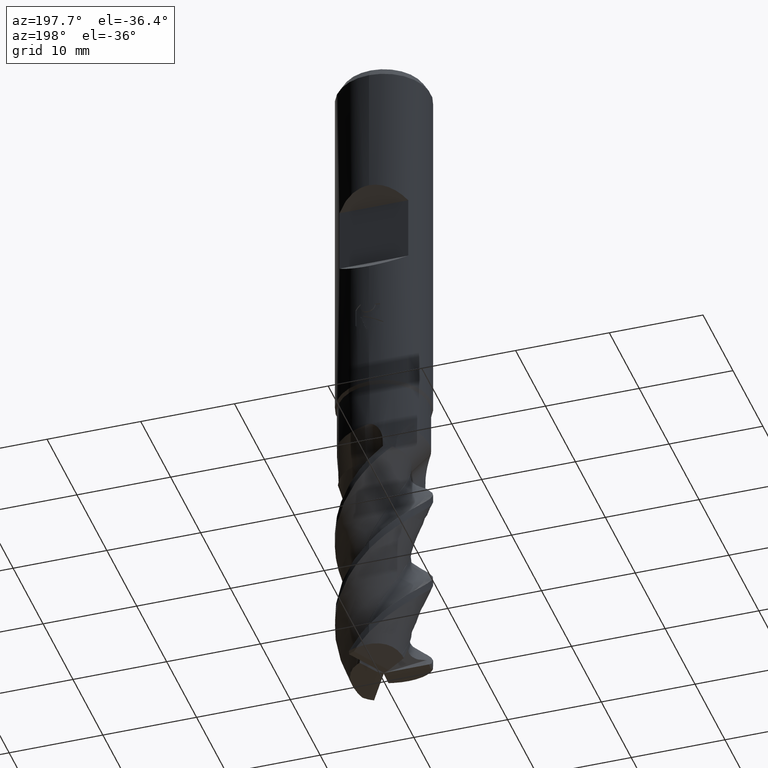
[diagram: clean part render]
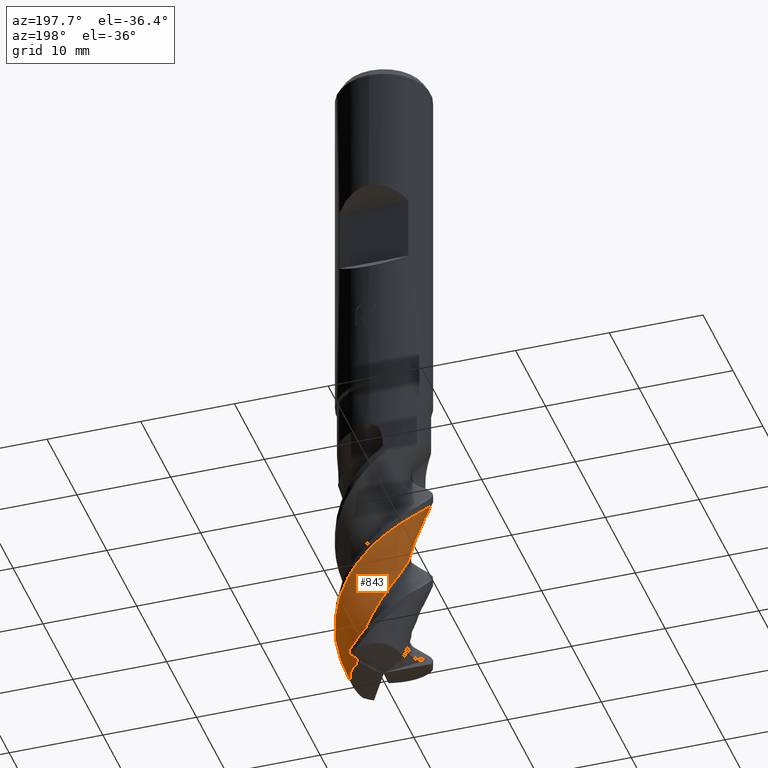
[diagram: same view with one face highlighted and labeled with its STEP entity id]
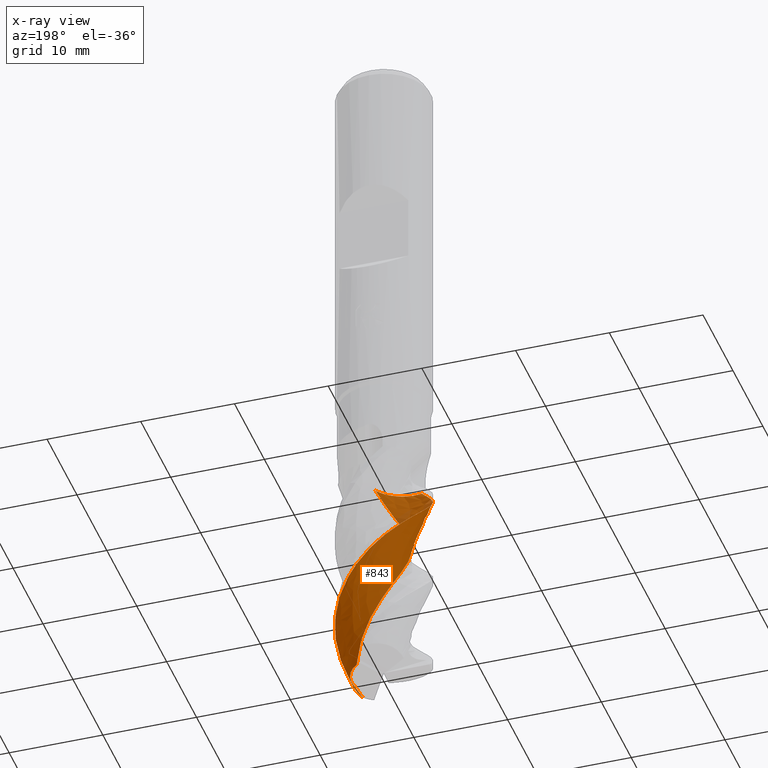
[diagram: x-ray of the same camera — body ghosted, the highlighted face saturated]
A machine part, auxiliary view. The second image highlights one B-rep face of the part: STEP entity #843.
The next image is the same camera in x-ray: the body ghosted, the highlighted face saturated — about 1% of this face is hidden behind the body in this view.
In plain terms, the highlighted face is a freeform B-spline surface patch.
Its self-contained STEP definition (entity closure, byte-faithful):
#541=VERTEX_POINT('',#1450);
#573=VERTEX_POINT('',#1484);
#625=EDGE_CURVE('',#981,#541,#1541,.T.);
#843=ADVANCED_FACE('',(#1776),#1777,.T.);
#917=EDGE_CURVE('',#1131,#1115,#1861,.T.);
#927=EDGE_CURVE('',#1003,#573,#1872,.T.);
#965=EDGE_CURVE('',#541,#983,#1912,.T.);
#981=VERTEX_POINT('',#1928);
#983=VERTEX_POINT('',#1930);
#1003=VERTEX_POINT('',#1950);
#1115=VERTEX_POINT('',#2074);
#1131=VERTEX_POINT('',#2093);
#1205=EDGE_CURVE('',#573,#981,#2178,.T.);
#1207=EDGE_CURVE('',#983,#1115,#2180,.T.);
#1227=EDGE_CURVE('',#1131,#1003,#2201,.T.);
#1450=CARTESIAN_POINT('',(-2.69298469409963,-4.21269906916516,-48.0));
#1484=CARTESIAN_POINT('',(3.41872528524508,-3.64860485994659,-72.8));
#1541=B_SPLINE_CURVE_WITH_KNOTS('',3,(#3372,#3373,#3374,#3375,#3376,#3377,#3378,#3379,#3380,#3381,#3382,#3383,#3384,#3385,#3386,#3387,#3388,#3389,#3390,#3391,#3392,#3393,#3394,#3395,#3396,#3397,#3398,#3399,#3400,#3401,#3402,#3403,#3404,#3405,#3406,#3407,#3408,#3409,#3410,#3411,#3412,#3413,#3414,#3415,#3416,#3417,#3418,#3419,#3420,#3421,#3422,#3423),.UNSPECIFIED.,.F.,.F.,(4,2,2,2,2,2,2,2,2,2,2,2,2,2,2,2,2,2,2,2,2,2,2,2,2,4),(0.0,0.988134241583596,1.95270639278563,3.82966324160619,4.95475581507991,5.92494092433805,7.80917052882413,9.09005883313164,10.2468111144452,11.1970510004283,13.1661303513227,14.2878595005954,15.1121674297604,15.6189022081948,16.0113833273438,16.8208845094153,17.3187185880664,17.7663978848798,17.9842540383851,18.4097521990205,18.6797584043021,18.8995568507258,19.3448815183929,19.5253152425362,19.8025233185832,20.0737217136674),.UNSPECIFIED.);
#1776=FACE_OUTER_BOUND('',#5028,.T.);
#1777=B_SPLINE_SURFACE_WITH_KNOTS('',3,3,((#5029,#5030,#5031,#5032,#5033,#5034,#5035,#5036,#5037,#5038,#5039,#5040,#5041,#5042,#5043,#5044,#5045,#5046,#5047,#5048,#5049,#5050,#5051,#5052,#5053,#5054,#5055,#5056,#5057,#5058,#5059,#5060,#5061,#5062,#5063,#5064,#5065,#5066,#5067,#5068,#5069,#5070,#5071,#5072,#5073,#5074,#5075,#5076,#5077,#5078,#5079,#5080,#5081,#5082,#5083,#5084),(#5085,#5086,#5087,#5088,#5089,#5090,#5091,#5092,#5093,#5094,#5095,#5096,#5097,#5098,#5099,#5100,#5101,#5102,#5103,#5104,#5105,#5106,#5107,#5108,#5109,#5110,#5111,#5112,#5113,#5114,#5115,#5116,#5117,#5118,#5119,#5120,#5121,#5122,#5123,#5124,#5125,#5126,#5127,#5128,#5129,#5130,#5131,#5132,#5133,#5134,#5135,#5136,#5137,#5138,#5139,#5140),(#5141,#5142,#5143,#5144,#5145,#5146,#5147,#5148,#5149,#5150,#5151,#5152,#5153,#5154,#5155,#5156,#5157,#5158,#5159,#5160,#5161,#5162,#5163,#5164,#5165,#5166,#5167,#5168,#5169,#5170,#5171,#5172,#5173,#5174,#5175,#5176,#5177,#5178,#5179,#5180,#5181,#5182,#5183,#5184,#5185,#5186,#5187,#5188,#5189,#5190,#5191,#5192,#5193,#5194,#5195,#5196),(#5197,#5198,#5199,#5200,#5201,#5202,#5203,#5204,#5205,#5206,#5207,#5208,#5209,#5210,#5211,#5212,#5213,#5214,#5215,#5216,#5217,#5218,#5219,#5220,#5221,#5222,#5223,#5224,#5225,#5226,#5227,#5228,#5229,#5230,#5231,#5232,#5233,#5234,#5235,#5236,#5237,#5238,#5239,#5240,#5241,#5242,#5243,#5244,#5245,#5246,#5247,#5248,#5249,#5250,#5251,#5252),(#5253,#5254,#5255,#5256,#5257,#5258,#5259,#5260,#5261,#5262,#5263,#5264,#5265,#5266,#5267,#5268,#5269,#5270,#5271,#5272,#5273,#5274,#5275,#5276,#5277,#5278,#5279,#5280,#5281,#5282,#5283,#5284,#5285,#5286,#5287,#5288,#5289,#5290,#5291,#5292,#5293,#5294,#5295,#5296,#5297,#5298,#5299,#5300,#5301,#5302,#5303,#5304,#5305,#5306,#5307,#5308),(#5309,#5310,#5311,#5312,#5313,#5314,#5315,#5316,#5317,#5318,#5319,#5320,#5321,#5322,#5323,#5324,#5325,#5326,#5327,#5328,#5329,#5330,#5331,#5332,#5333,#5334,#5335,#5336,#5337,#5338,#5339,#5340,#5341,#5342,#5343,#5344,#5345,#5346,#5347,#5348,#5349,#5350,#5351,#5352,#5353,#5354,#5355,#5356,#5357,#5358,#5359,#5360,#5361,#5362,#5363,#5364),(#5365,#5366,#5367,#5368,#5369,#5370,#5371,#5372,#5373,#5374,#5375,#5376,#5377,#5378,#5379,#5380,#5381,#5382,#5383,#5384,#5385,#5386,#5387,#5388,#5389,#5390,#5391,#5392,#5393,#5394,#5395,#5396,#5397,#5398,#5399,#5400,#5401,#5402,#5403,#5404,#5405,#5406,#5407,#5408,#5409,#5410,#5411,#5412,#5413,#5414,#5415,#5416,#5417,#5418,#5419,#5420)),.UNSPECIFIED.,.F.,.F.,.F.,(4,1,1,1,4),(4,1,1,2,1,2,1,2,1,1,1,2,1,2,1,2,1,2,1,2,1,2,1,2,1,2,1,2,1,2,1,2,1,2,1,2,1,4),(-1.37901021717097,-1.03425766287823,-0.689505108585486,-0.344752554292743,0.0),(0.0,0.706621103411192,1.05993165511679,1.41324220682238,2.11986331023358,2.82648441364477,4.23972662046715,5.65296882728954,6.35958993070073,7.06621103411192,7.77283213752311,8.47945324093431,9.89269544775669,11.3059376545791,12.7191798614015,14.1324220682238,15.5456642750462,16.9589064818686,18.372148688691,19.7853908955134,21.1986331023358,22.6118753091582,24.0251175159805,25.4383597228029,26.8516019296253,28.2648441364477,29.6780863432701,31.0913285500925,32.5045707569148,33.9178129637372,35.3310551705596,36.744297377382,38.1575395842044,39.5707817910268,40.9840239978492,42.3972662046715,43.8105084114939,45.2237506183163),.UNSPECIFIED.);
#1861=B_SPLINE_CURVE_WITH_KNOTS('',3,(#5663,#5664,#5665,#5666,#5667,#5668,#5669,#5670,#5671,#5672,#5673,#5674,#5675,#5676,#5677,#5678,#5679,#5680,#5681,#5682,#5683,#5684,#5685,#5686,#5687,#5688,#5689,#5690,#5691,#5692,#5693,#5694,#5695,#5696,#5697,#5698,#5699,#5700,#5701,#5702,#5703,#5704,#5705,#5706,#5707,#5708,#5709,#5710,#5711,#5712,#5713,#5714),.UNSPECIFIED.,.F.,.F.,(4,2,2,2,2,2,2,2,2,2,2,2,2,2,2,2,2,2,2,2,2,2,2,2,2,4),(0.0,1.57741097245639,2.19272207920928,2.52578493157698,4.93826544122092,5.77919319250259,8.43926305545941,9.32971134413336,10.8678259158841,12.0754710448376,12.7538676559445,14.2320007522025,15.2792466770981,15.9338987363988,17.3300185660111,18.3720876148138,18.9942216054861,20.3282942203176,21.3085092978936,21.9031659978885,23.1738596096373,23.817365011499,24.709073201189,26.5636217228051,27.5651219357418,28.583284291885),.UNSPECIFIED.);
#1872=B_SPLINE_CURVE_WITH_KNOTS('',3,(#5728,#5729,#5730,#5731),.UNSPECIFIED.,.F.,.F.,(4,4),(0.0,0.657688322130578),.UNSPECIFIED.);
#1912=B_SPLINE_CURVE_WITH_KNOTS('',3,(#6463,#6464,#6465,#6466,#6467,#6468,#6469,#6470,#6471,#6472),.UNSPECIFIED.,.F.,.F.,(4,2,2,2,4),(0.0,1.61492829246132,3.22976532082692,4.45284382131823,5.67589093516359),.UNSPECIFIED.);
#1928=CARTESIAN_POINT('',(-1.9835625421076E-013,4.99995183058909,-60.8539860944891));
#1930=CARTESIAN_POINT('',(1.30813348429914,-2.77318816630881,-48.0));
#1950=CARTESIAN_POINT('',(3.43462371757239,-3.58287169020827,-72.8367742717254));
#2074=CARTESIAN_POINT('',(1.64330364664975,-2.29859254961266,-48.0));
#2093=CARTESIAN_POINT('',(2.52090051144731,1.27770578238611,-72.3042369890684));
#2178=B_SPLINE_CURVE_WITH_KNOTS('',3,(#8025,#8026,#8027,#8028,#8029,#8030,#8031,#8032,#8033,#8034,#8035,#8036,#8037,#8038,#8039,#8040,#8041,#8042,#8043,#8044,#8045,#8046,#8047,#8048,#8049,#8050,#8051,#8052,#8053,#8054,#8055,#8056,#8057,#8058,#8059,#8060,#8061,#8062,#8063,#8064,#8065,#8066,#8067,#8068,#8069,#8070,#8071,#8072,#8073,#8074,#8075,#8076),.UNSPECIFIED.,.F.,.F.,(4,2,2,2,2,2,2,2,2,2,2,2,2,2,2,2,2,2,2,2,2,2,2,2,2,4),(0.0,0.988134241583596,1.95270639278563,3.82966324160619,4.95475581507991,5.92494092433805,7.80917052882413,9.09005883313164,10.2468111144452,11.1970510004283,13.1661303513227,14.2878595005954,15.1121674297604,15.6189022081948,16.0113833273438,16.8208845094153,17.3187185880664,17.7663978848798,17.9842540383851,18.4097521990205,18.6797584043021,18.8995568507258,19.3448815183929,19.5253152425362,19.8025233185832,20.0737217136674),.UNSPECIFIED.);
#2180=B_SPLINE_CURVE_WITH_KNOTS('',3,(#8079,#8080,#8081,#8082,#8083,#8084,#8085,#8086,#8087,#8088),.UNSPECIFIED.,.F.,.F.,(4,2,2,2,4),(0.0,1.61492829246132,3.22976532082692,4.45284382131823,5.67589093516359),.UNSPECIFIED.);
#2201=B_SPLINE_CURVE_WITH_KNOTS('',3,(#8132,#8133,#8134,#8135,#8136,#8137,#8138,#8139,#8140,#8141,#8142,#8143),.UNSPECIFIED.,.F.,.F.,(4,2,2,2,2,4),(0.0,1.48412961717875,2.86647355672612,4.32861088308654,5.38245037227994,6.53272780832244),.UNSPECIFIED.);
#3372=CARTESIAN_POINT('',(3.41872528524506,-3.64860485994662,-72.8));
#3373=CARTESIAN_POINT('',(3.58762814923473,-3.49034239015004,-72.5656610721152));
#3374=CARTESIAN_POINT('',(3.7463214006366,-3.31962400664508,-72.3316719576723));
#3375=CARTESIAN_POINT('',(4.0367069746091,-2.95926029170682,-71.8737872785972));
#3376=CARTESIAN_POINT('',(4.16588967895351,-2.77442387225095,-71.6573454085971));
#3377=CARTESIAN_POINT('',(4.51273423387194,-2.19828902332431,-70.9930350062166));
#3378=CARTESIAN_POINT('',(4.6884213182814,-1.79170385054873,-70.544184967885));
#3379=CARTESIAN_POINT('',(4.88034821521012,-1.11844579268475,-69.8335906410657));
#3380=CARTESIAN_POINT('',(4.93276518282088,-0.859252434118128,-69.567362866941));
#3381=CARTESIAN_POINT('',(4.99169534609044,-0.367882844471212,-69.077361387179));
#3382=CARTESIAN_POINT('',(5.00316451207588,-0.142685484934881,-68.8610935146868));
#3383=CARTESIAN_POINT('',(4.99164391592021,0.529241372024178,-68.1983081944608));
#3384=CARTESIAN_POINT('',(4.92511314624853,0.966360450184575,-67.75078257871));
#3385=CARTESIAN_POINT('',(4.72171122080304,1.67134078486048,-67.006150542586));
#3386=CARTESIAN_POINT('',(4.61353868419437,1.95085704362651,-66.7047417800924));
#3387=CARTESIAN_POINT('',(4.35878060791921,2.46471889813917,-66.1392138419157));
#3388=CARTESIAN_POINT('',(4.21993516068773,2.69575222604501,-65.8805271787264));
#3389=CARTESIAN_POINT('',(3.9283600083592,3.10136143660193,-65.3827473721625));
#3390=CARTESIAN_POINT('',(3.78527735214115,3.27432103045068,-65.1563410983268));
#3391=CARTESIAN_POINT('',(3.31402424903352,3.77237254679301,-64.4604866137234));
#3392=CARTESIAN_POINT('',(2.94818658145794,4.06563283285807,-63.9859799509844));
#3393=CARTESIAN_POINT('',(2.31207488459464,4.44137560631195,-63.2603456856251));
#3394=CARTESIAN_POINT('',(1.87840142862383,4.67617658929016,-62.787333740531));
#3395=CARTESIAN_POINT('',(0.823267141992143,4.95331362568581,-61.6806646920116));
#3396=CARTESIAN_POINT('',(0.358412122386368,5.00916280341716,-61.206444511862));
#3397=CARTESIAN_POINT('',(-0.399878907366857,4.99229203167352,-60.4601219282215));
#3398=CARTESIAN_POINT('',(-0.68519560849677,4.96138110054733,-60.1839621181409));
#3399=CARTESIAN_POINT('',(-1.19359825367934,4.86065502168918,-59.6656514881704));
#3400=CARTESIAN_POINT('',(-1.41136495733703,4.80186138704326,-59.437605503481));
#3401=CARTESIAN_POINT('',(-2.06139840209444,4.57868018825656,-58.739555659725));
#3402=CARTESIAN_POINT('',(-2.48088673715287,4.36668647917899,-58.2652075975668));
#3403=CARTESIAN_POINT('',(-3.10606110582945,3.92889760337163,-57.5196205204597));
#3404=CARTESIAN_POINT('',(-3.43463539189141,3.66953775874276,-57.1131150316476));
#3405=CARTESIAN_POINT('',(-4.07396838244914,2.93507635686319,-56.1262756942769));
#3406=CARTESIAN_POINT('',(-4.32928819743095,2.54462172669136,-55.6529929471482));
#3407=CARTESIAN_POINT('',(-4.62413327058279,1.91531265372783,-54.9665861741317));
#3408=CARTESIAN_POINT('',(-4.70543905913764,1.70587117620066,-54.7510784891072));
#3409=CARTESIAN_POINT('',(-4.90567492014016,1.06372329041683,-54.0859534006638));
#3410=CARTESIAN_POINT('',(-4.97992143885162,0.626189672142898,-53.6361335814151));
#3411=CARTESIAN_POINT('',(-5.00684814735064,-0.0904741326703972,-52.9086965234608));
#3412=CARTESIAN_POINT('',(-4.99412377691504,-0.371082316588197,-52.6264651144215));
#3413=CARTESIAN_POINT('',(-4.92739013661458,-0.879128069897046,-52.1211440392572));
#3414=CARTESIAN_POINT('',(-4.88247362108483,-1.10179344466987,-51.9031589225268));
#3415=CARTESIAN_POINT('',(-4.69733421548067,-1.77570752559443,-51.2107795301648));
#3416=CARTESIAN_POINT('',(-4.51139178517653,-2.20459307502471,-50.7361941354011));
#3417=CARTESIAN_POINT('',(-4.17360088018374,-2.7595713752722,-50.078409396575));
#3418=CARTESIAN_POINT('',(-4.06683641457525,-2.91473352835719,-49.8890559347645));
#3419=CARTESIAN_POINT('',(-3.77292300551813,-3.29370617710205,-49.4123112717692));
#3420=CARTESIAN_POINT('',(-3.57817827282552,-3.50425781937701,-49.1380785850118));
#3421=CARTESIAN_POINT('',(-3.15359826283614,-3.89029165613089,-48.5692883979702));
#3422=CARTESIAN_POINT('',(-2.92910683230968,-4.06175841181444,-48.2845815819867));
#3423=CARTESIAN_POINT('',(-2.69298469409969,-4.21269906916514,-48.0));
#5028=EDGE_LOOP('',(#9822,#9823,#9824,#9825,#9826,#9827,#9828));
#5029=CARTESIAN_POINT('',(-5.04754161581084,-1.24992945227945,-83.0));
#5030=CARTESIAN_POINT('',(-5.03539987621516,-1.29831967293285,-82.7656238985562));
#5031=CARTESIAN_POINT('',(-4.99623684724001,-1.45988172174344,-82.4140997261266));
#5032=CARTESIAN_POINT('',(-4.86273141557475,-1.85016049553501,-81.9454006340291));
#5033=CARTESIAN_POINT('',(-4.75772159603012,-2.09954136540511,-81.7110258343004));
#5034=CARTESIAN_POINT('',(-4.56296474354198,-2.50725307637111,-81.359421697283));
#5035=CARTESIAN_POINT('',(-4.27572041834088,-2.99040628953174,-80.89060321521));
#5036=CARTESIAN_POINT('',(-3.96156418448099,-3.37423916988606,-80.421831786915));
#5037=CARTESIAN_POINT('',(-3.47590971384185,-3.89503122646999,-79.7187447556141));
#5038=CARTESIAN_POINT('',(-2.74883727260465,-4.48756549998443,-78.7812834633257));
#5039=CARTESIAN_POINT('',(-1.85787343423083,-4.88144985917651,-77.8438166796489));
#5040=CARTESIAN_POINT('',(-1.12455109740202,-5.08161651119211,-77.1406691884255));
#5041=CARTESIAN_POINT('',(-0.637940641273631,-5.17636734423884,-76.6718990288779));
#5042=CARTESIAN_POINT('',(0.0840825929843494,-5.21440151641817,-75.9687542014957));
#5043=CARTESIAN_POINT('',(0.802543824712602,-5.15322062283726,-75.2656290713089));
#5044=CARTESIAN_POINT('',(1.28214017864054,-5.04404286667545,-74.7968873559644));
#5045=CARTESIAN_POINT('',(2.00175822070624,-4.82373113256568,-74.0937692408637));
#5046=CARTESIAN_POINT('',(2.8780436746957,-4.40726711873945,-73.1562544373309));
#5047=CARTESIAN_POINT('',(3.61153065270937,-3.77248497201777,-72.2187742502716));
#5048=CARTESIAN_POINT('',(4.26632938099091,-3.0122907172946,-71.2812713203949));
#5049=CARTESIAN_POINT('',(4.78462995213376,-2.19375331139891,-70.3437488382876));
#5050=CARTESIAN_POINT('',(5.06670000271505,-1.26640569670406,-69.4062691544086));
#5051=CARTESIAN_POINT('',(5.21546029741291,-0.273381504558596,-68.4687689092279));
#5052=CARTESIAN_POINT('',(5.21738742575653,0.696262739843169,-67.5312477264164));
#5053=CARTESIAN_POINT('',(4.96125483956244,1.63125322191142,-66.5937677012171));
#5054=CARTESIAN_POINT('',(4.55759863447677,2.55027639454073,-65.6562670960083));
#5055=CARTESIAN_POINT('',(4.04226174002494,3.3713288258221,-64.7187458720753));
#5056=CARTESIAN_POINT('',(3.32699349514165,4.02569267574702,-63.7812659727849));
#5057=CARTESIAN_POINT('',(2.49533128035696,4.58791643468255,-62.8437653435765));
#5058=CARTESIAN_POINT('',(1.62146142103282,5.00765704263858,-61.9062440475431));
#5059=CARTESIAN_POINT('',(0.667428153813283,5.17973117838871,-60.968764125106));
#5060=CARTESIAN_POINT('',(-0.335908823390785,5.21179562920123,-60.0312635490851));
#5061=CARTESIAN_POINT('',(-1.29897504614663,5.10082654025347,-59.093742296601));
#5062=CARTESIAN_POINT('',(-2.19778035704776,4.73759866840185,-58.1562623779748));
#5063=CARTESIAN_POINT('',(-3.06362180403709,4.22964239965411,-57.2187617869582));
#5064=CARTESIAN_POINT('',(-3.81911846111889,3.6221686432287,-56.2812405326595));
#5065=CARTESIAN_POINT('',(-4.38573120191044,2.83556911847856,-55.3437606219615));
#5066=CARTESIAN_POINT('',(-4.84727585085532,1.94411457091867,-54.4062600327525));
#5067=CARTESIAN_POINT('',(-5.1623981523874,1.02732967621307,-53.4687387549968));
#5068=CARTESIAN_POINT('',(-5.22221258411637,0.0597772825650083,-52.531258833677));
#5069=CARTESIAN_POINT('',(-5.1372398093556,-0.940431118833435,-51.59375827707));
#5070=CARTESIAN_POINT('',(-4.91490146746126,-1.88403071620436,-50.6562370737299));
#5071=CARTESIAN_POINT('',(-4.44945986360374,-2.7344883370448,-49.7187570477018));
#5072=CARTESIAN_POINT('',(-3.84409168783425,-3.53534471077293,-48.7812561796351));
#5073=CARTESIAN_POINT('',(-3.15280249403988,-4.21490703958009,-47.8437347396775));
#5074=CARTESIAN_POINT('',(-2.3057082197871,-4.68601910292313,-46.9062554328767));
#5075=CARTESIAN_POINT('',(-1.36663655724628,-5.04062690859651,-45.9687560285536));
#5076=CARTESIAN_POINT('',(-0.419182105468294,-5.2469360050459,-45.0312351289086));
#5077=CARTESIAN_POINT('',(0.548676806645889,-5.19362327661637,-44.0937526107952));
#5078=CARTESIAN_POINT('',(1.5315673420318,-4.99295067314917,-43.1562478197749));
#5079=CARTESIAN_POINT('',(2.44238353501825,-4.66272767221132,-42.2187260379537));
#5080=CARTESIAN_POINT('',(3.23506318190312,-4.10020261256896,-41.2812539917129));
#5081=CARTESIAN_POINT('',(3.96312347252248,-3.40180917707668,-40.3437642653027));
#5082=CARTESIAN_POINT('',(4.5563054090907,-2.63414430140916,-39.4062432749415));
#5083=CARTESIAN_POINT('',(4.91923112740184,-1.75117636961176,-38.4687637784711));
#5084=CARTESIAN_POINT('',(5.0395149552295,-1.27527557451708,-38.0000206176002));
#5085=CARTESIAN_POINT('',(-4.78786267448732,-1.647745264979,-83.0));
#5086=CARTESIAN_POINT('',(-4.77059972989467,-1.69279253727989,-82.7655952111409));
#5087=CARTESIAN_POINT('',(-4.71738460878226,-1.84514938431466,-82.4141973553499));
#5088=CARTESIAN_POINT('',(-4.55388911095017,-2.21163102787196,-81.9456903285048));
#5089=CARTESIAN_POINT('',(-4.43078684750819,-2.44448679989482,-81.7113265638271));
#5090=CARTESIAN_POINT('',(-4.20737824879181,-2.82345025835676,-81.3595915607462));
#5091=CARTESIAN_POINT('',(-3.88767351091924,-3.26755636203001,-80.8905428441124));
#5092=CARTESIAN_POINT('',(-3.5500699077531,-3.61264281340808,-80.421692343469));
#5093=CARTESIAN_POINT('',(-3.03432179983128,-4.07553773950823,-79.7187291002725));
#5094=CARTESIAN_POINT('',(-2.27830746029553,-4.5869900154935,-78.781400617911));
#5095=CARTESIAN_POINT('',(-1.38068567227322,-4.89204510832641,-77.8440540686805));
#5096=CARTESIAN_POINT('',(-0.652525138541826,-5.02318553180198,-77.1408333078237));
#5097=CARTESIAN_POINT('',(-0.172613612920442,-5.07319420641326,-76.6719961105493));
#5098=CARTESIAN_POINT('',(0.530599747670915,-5.04780371241335,-75.9687851007027));
#5099=CARTESIAN_POINT('',(1.22179151254523,-4.9265241878764,-75.2656603818928));
#5100=CARTESIAN_POINT('',(1.6773349747037,-4.77940193957025,-74.7969474496406));
#5101=CARTESIAN_POINT('',(2.35608337009284,-4.50398808770538,-74.0938538274698));
#5102=CARTESIAN_POINT('',(3.16965706391191,-4.02468475733608,-73.15629044735));
#5103=CARTESIAN_POINT('',(3.82594688102861,-3.34609578915385,-72.2188802384841));
#5104=CARTESIAN_POINT('',(4.3954775477398,-2.55283241986562,-71.2813695385692));
#5105=CARTESIAN_POINT('',(4.82732660483054,-1.71462032332648,-70.3437723851011));
#5106=CARTESIAN_POINT('',(5.02078815618036,-0.791350752798335,-69.4063639703699));
#5107=CARTESIAN_POINT('',(5.07971450017441,0.184174272934609,-68.4688648599225));
#5108=CARTESIAN_POINT('',(4.99795330012336,1.12433529631731,-67.5312734196309));
#5109=CARTESIAN_POINT('',(4.66903781118063,2.00860318800107,-66.5938636190338));
#5110=CARTESIAN_POINT('',(4.19874541017849,2.8649306068265,-65.6563629753595));
#5111=CARTESIAN_POINT('',(3.62835128054217,3.61642892881482,-64.7187713742117));
#5112=CARTESIAN_POINT('',(2.87856130848685,4.1890719096522,-63.7813620784324));
#5113=CARTESIAN_POINT('',(2.02396240858558,4.66271417199913,-62.8438613338273));
#5114=CARTESIAN_POINT('',(1.1406116965309,4.99424939096289,-61.9062693958839));
#5115=CARTESIAN_POINT('',(0.200958676512194,5.07878395193316,-60.9688600087407));
#5116=CARTESIAN_POINT('',(-0.774540294598056,5.02368485143172,-60.0313595096508));
#5117=CARTESIAN_POINT('',(-1.69858663595556,4.83304536274644,-59.0937677686904));
#5118=CARTESIAN_POINT('',(-2.53854224489377,4.40343488594661,-58.1563583817622));
#5119=CARTESIAN_POINT('',(-3.33435060373594,3.83659136118907,-57.2188578292112));
#5120=CARTESIAN_POINT('',(-4.0143513673532,3.18253212507577,-56.2812660476943));
#5121=CARTESIAN_POINT('',(-4.49577956912139,2.37116253421922,-55.3438567250319));
#5122=CARTESIAN_POINT('',(-4.86667623792895,1.46724262219382,-54.4063561742883));
#5123=CARTESIAN_POINT('',(-5.09309069360687,0.551312368951493,-53.4687643422198));
#5124=CARTESIAN_POINT('',(-5.06763771119335,-0.391765163789293,-52.531354978452));
#5125=CARTESIAN_POINT('',(-4.89933843082347,-1.354177438531,-51.5938544603105));
#5126=CARTESIAN_POINT('',(-4.60241422494105,-2.24974690778031,-50.656262839974));
#5127=CARTESIAN_POINT('',(-4.07789004359111,-3.03402170561529,-49.7188530204132));
#5128=CARTESIAN_POINT('',(-3.42218720314337,-3.75845920147654,-48.7813514599668));
#5129=CARTESIAN_POINT('',(-2.69342434612236,-4.35761802263979,-47.8437593150949));
#5130=CARTESIAN_POINT('',(-1.83164795210125,-4.74125266413232,-46.9063525592146));
#5131=CARTESIAN_POINT('',(-0.890748586679996,-5.00438279904045,-45.9688563090654));
#5132=CARTESIAN_POINT('',(0.0455285502723096,-5.12266886843095,-45.0312645195175));
#5133=CARTESIAN_POINT('',(0.979148062857104,-4.98752598574221,-44.0938440877377));
#5134=CARTESIAN_POINT('',(1.91482856434626,-4.70853627460817,-43.1563282186431));
#5135=CARTESIAN_POINT('',(2.76930630640705,-4.30984803592541,-42.2187401945365));
#5136=CARTESIAN_POINT('',(3.48921619486859,-3.69621082999028,-41.2813637184756));
#5137=CARTESIAN_POINT('',(4.13512467086843,-2.9565926094035,-40.3438987638704));
#5138=CARTESIAN_POINT('',(4.64397243552085,-2.1612375133219,-39.4062850661965));
#5139=CARTESIAN_POINT('',(4.91952132698513,-1.27399730769112,-38.468835285758));
#5140=CARTESIAN_POINT('',(4.99517005831511,-0.802280755762357,-38.0000909709211));
#5141=CARTESIAN_POINT('',(-4.13010891999949,-2.35289758239888,-83.0));
#5142=CARTESIAN_POINT('',(-4.10376832791932,-2.38947734079444,-82.7655416705321));
#5143=CARTESIAN_POINT('',(-4.02565637138649,-2.51853522422415,-82.4143795645915));
#5144=CARTESIAN_POINT('',(-3.81047068622688,-2.82699042525439,-81.9462309979635));
#5145=CARTESIAN_POINT('',(-3.65693955122435,-3.02050299008233,-81.7118878294356));
#5146=CARTESIAN_POINT('',(-3.38624039217776,-3.33200478812622,-81.3599085835156));
#5147=CARTESIAN_POINT('',(-3.01521317892081,-3.68672843907467,-80.8904301723695));
#5148=CARTESIAN_POINT('',(-2.6442063191009,-3.94617071695937,-80.421432091832));
#5149=CARTESIAN_POINT('',(-2.08842943448655,-4.28281155363633,-79.7186998860942));
#5150=CARTESIAN_POINT('',(-1.30275906062183,-4.62204658927771,-78.7816192660091));
#5151=CARTESIAN_POINT('',(-0.422740016228246,-4.74714769466667,-77.8444971200163));
#5152=CARTESIAN_POINT('',(0.271073571384802,-4.74204926295724,-77.1411396105136));
#5153=CARTESIAN_POINT('',(0.722016373603272,-4.70491620289102,-76.6721773006839));
#5154=CARTESIAN_POINT('',(1.36553965339229,-4.55923878500662,-75.9688427704539));
#5155=CARTESIAN_POINT('',(1.98128186270153,-4.3272679423506,-75.2657188156737));
#5156=CARTESIAN_POINT('',(2.37551889161588,-4.11263770224177,-74.797059606591));
#5157=CARTESIAN_POINT('',(2.95335974294358,-3.7412578088079,-74.0940116924387));
#5158=CARTESIAN_POINT('',(3.61965415375239,-3.15811824238433,-73.156357645368));
#5159=CARTESIAN_POINT('',(4.10632169086856,-2.41879485965569,-72.2190780701122));
#5160=CARTESIAN_POINT('',(4.49382753090414,-1.58907899923561,-71.2815528265319));
#5161=CARTESIAN_POINT('',(4.745947092148,-0.741611814547395,-70.3438163478711));
#5162=CARTESIAN_POINT('',(4.76363281429591,0.142662468757519,-69.4065409181458));
#5163=CARTESIAN_POINT('',(4.64900400678022,1.05192675066384,-68.4690439485567));
#5164=CARTESIAN_POINT('',(4.41014840436509,1.90400086366689,-67.5313213765568));
#5165=CARTESIAN_POINT('',(3.95333900894858,2.66150396347774,-66.594042614222));
#5166=CARTESIAN_POINT('',(3.37161195522812,3.36926259414625,-65.6565419398594));
#5167=CARTESIAN_POINT('',(2.71532520536025,3.96250715264337,-64.7188189529856));
#5168=CARTESIAN_POINT('',(1.9249432432638,4.35971322472986,-63.7815414581933));
#5169=CARTESIAN_POINT('',(1.05530744261222,4.64823121955666,-62.8440404712861));
#5170=CARTESIAN_POINT('',(0.183697255553357,4.80007757312858,-61.9063166976969));
#5171=CARTESIAN_POINT('',(-0.696730661201098,4.71455959094755,-60.969038988031));
#5172=CARTESIAN_POINT('',(-1.58622317634045,4.49484389768383,-60.0315385778427));
#5173=CARTESIAN_POINT('',(-2.40451008766931,4.15846410149605,-59.0938152909323));
#5174=CARTESIAN_POINT('',(-3.10367630289747,3.61658743932462,-58.1565376202568));
#5175=CARTESIAN_POINT('',(-3.73894003485828,2.95635890708941,-57.2190370149083));
#5176=CARTESIAN_POINT('',(-4.25175351093489,2.23541657429287,-56.2813136990019));
#5177=CARTESIAN_POINT('',(-4.5542124268301,1.40416143225199,-55.3440360859521));
#5178=CARTESIAN_POINT('',(-4.73949685870416,0.506863907863607,-54.4065356081389));
#5179=CARTESIAN_POINT('',(-4.7888149694138,-0.376482493395519,-53.4688121209689));
#5180=CARTESIAN_POINT('',(-4.60136663010238,-1.24093899784355,-52.5315343688871));
#5181=CARTESIAN_POINT('',(-4.27958981862687,-2.0987665310659,-51.5940340203104));
#5182=CARTESIAN_POINT('',(-3.85022914664156,-2.87232795626328,-50.6563109071819));
#5183=CARTESIAN_POINT('',(-3.23058933527816,-3.50368970793212,-49.7190321327423));
#5184=CARTESIAN_POINT('',(-2.50082712791392,-4.05778929705138,-48.781529291814));
#5185=CARTESIAN_POINT('',(-1.72511066626114,-4.48311819281258,-47.8438052174851));
#5186=CARTESIAN_POINT('',(-0.864420161446395,-4.68670943199205,-46.9065337522639));
#5187=CARTESIAN_POINT('',(0.0482953366421852,-4.76627062635527,-45.9690435452868));
#5188=CARTESIAN_POINT('',(0.93158417425054,-4.71242261392523,-45.0313193253005));
#5189=CARTESIAN_POINT('',(1.76825231881294,-4.42555657153769,-44.0940148314958));
#5190=CARTESIAN_POINT('',(2.58226611271881,-4.00638344845441,-43.1564782545076));
#5191=CARTESIAN_POINT('',(3.30025149027841,-3.49039016955705,-42.2187665424905));
#5192=CARTESIAN_POINT('',(3.85685020163033,-2.799868817964,-41.2815686688811));
#5193=CARTESIAN_POINT('',(4.32412699496844,-2.00640410269357,-40.3441496222503));
#5194=CARTESIAN_POINT('',(4.6546896129528,-1.18502793962002,-39.4063631847557));
#5195=CARTESIAN_POINT('',(4.75401940799057,-0.319655746154991,-38.468968662077));
#5196=CARTESIAN_POINT('',(4.74186527260691,0.128158098005584,-38.0002222745066));
#5197=CARTESIAN_POINT('',(-2.84399123193299,-3.01497107853644,-83.0));
#5198=CARTESIAN_POINT('',(-2.80912758924969,-3.03499418462156,-82.7654822912824));
#5199=CARTESIAN_POINT('',(-2.70767812954425,-3.1185362880244,-82.4145816432806));
#5200=CARTESIAN_POINT('',(-2.44893379575335,-3.31886360583634,-81.9468306257749));
#5201=CARTESIAN_POINT('',(-2.27238903567602,-3.44140439346942,-81.7125102989068));
#5202=CARTESIAN_POINT('',(-1.96912627813363,-3.63368805747416,-81.3602601769963));
#5203=CARTESIAN_POINT('',(-1.57095649943088,-3.83620158539977,-80.8903052131482));
#5204=CARTESIAN_POINT('',(-1.19621021838133,-3.95779607429403,-80.421143462203));
#5205=CARTESIAN_POINT('',(-0.647928364063801,-4.09589676831772,-79.7186674830945));
#5206=CARTESIAN_POINT('',(0.0923005171678631,-4.17695925958073,-78.7818617596463));
#5207=CARTESIAN_POINT('',(0.856235395541463,-4.05692410351599,-77.8449884822752));
#5208=CARTESIAN_POINT('',(1.43248773005465,-3.87689572369168,-77.1414793156182));
#5209=CARTESIAN_POINT('',(1.79835340300195,-3.73142179343188,-76.6723782457191));
#5210=CARTESIAN_POINT('',(2.29662308168004,-3.44618387607826,-75.9689067275849));
#5211=CARTESIAN_POINT('',(2.74972709749363,-3.09618936651114,-75.2657836264567));
#5212=CARTESIAN_POINT('',(3.0231862325764,-2.81733174392832,-74.7971839892534));
#5213=CARTESIAN_POINT('',(3.40991250700782,-2.36162409152662,-74.0941867812817));
#5214=CARTESIAN_POINT('',(3.81563430001444,-1.70655488104826,-73.156432177783));
#5215=CARTESIAN_POINT('',(4.03203687544682,-0.96748077230823,-72.2192974519857));
#5216=CARTESIAN_POINT('',(4.14407809341464,-0.178583368750613,-71.281756124033));
#5217=CARTESIAN_POINT('',(4.13776206921236,0.590831496921393,-70.3438650942708));
#5218=CARTESIAN_POINT('',(3.9270558494577,1.3309376776232,-69.4067371595703));
#5219=CARTESIAN_POINT('',(3.60099318800228,2.05866607872185,-68.4692425680926));
#5220=CARTESIAN_POINT('',(3.18500855585758,2.70673518540394,-67.5313745634));
#5221=CARTESIAN_POINT('',(2.61190438879126,3.22043154635778,-66.5942411255579));
#5222=CARTESIAN_POINT('',(1.94817394351628,3.66194481588503,-65.6567404224958));
#5223=CARTESIAN_POINT('',(1.25085437064536,3.98821994106298,-64.7188717158658));
#5224=CARTESIAN_POINT('',(0.492106763779734,4.11716364273076,-63.7817404044478));
#5225=CARTESIAN_POINT('',(-0.30490453375554,4.13669841046555,-62.844239137341));
#5226=CARTESIAN_POINT('',(-1.06884124677266,4.04081083803329,-61.9063691712152));
#5227=CARTESIAN_POINT('',(-1.77944200658205,3.74523712127483,-60.9692374629283));
#5228=CARTESIAN_POINT('',(-2.46405315646068,3.33671774501478,-60.0317371942776));
#5229=CARTESIAN_POINT('',(-3.05914111443772,2.84819827647041,-59.0938680178209));
#5230=CARTESIAN_POINT('',(-3.50262344119819,2.21920027529159,-58.1567363375859));
#5231=CARTESIAN_POINT('',(-3.86388499216448,1.5085225295472,-57.2192358066886));
#5232=CARTESIAN_POINT('',(-4.10675401502131,0.777914193729938,-56.2813665075055));
#5233=CARTESIAN_POINT('',(-4.14646116851671,0.00931777643305165,-55.3442350170765));
#5234=CARTESIAN_POINT('',(-4.07305426716298,-0.784529116503258,-54.4067345971339));
#5235=CARTESIAN_POINT('',(-3.88886563549995,-1.53208961441196,-53.4688650997634));
#5236=CARTESIAN_POINT('',(-3.51257006085433,-2.20342046170225,-52.5317333528743));
#5237=CARTESIAN_POINT('',(-3.02713453428365,-2.8357849015587,-51.5942331290794));
#5238=CARTESIAN_POINT('',(-2.47265432802341,-3.36995220742318,-50.6563642118709));
#5239=CARTESIAN_POINT('',(-1.7962528819902,-3.73720872570429,-49.71923081645));
#5240=CARTESIAN_POINT('',(-1.04829050233865,-4.01327757333169,-48.7817264758289));
#5241=CARTESIAN_POINT('',(-0.294412321346183,-4.16938765948138,-47.843856124276));
#5242=CARTESIAN_POINT('',(0.473467274373463,-4.11934276299843,-46.9067347457652));
#5243=CARTESIAN_POINT('',(1.25332737699802,-3.95402848916361,-45.9692511570298));
#5244=CARTESIAN_POINT('',(1.97453891130624,-3.68402410698865,-45.0313801347923));
#5245=CARTESIAN_POINT('',(2.59741025706127,-3.23210626657327,-44.094204181621));
#5246=CARTESIAN_POINT('',(3.16858430483886,-2.67670329995961,-43.1566446638913));
#5247=CARTESIAN_POINT('',(3.63439778224774,-2.06429638659609,-42.2187958045857));
#5248=CARTESIAN_POINT('',(3.92145404065686,-1.34802435083773,-41.281795873857));
#5249=CARTESIAN_POINT('',(4.10923832455365,-0.569100892511623,-40.3444279304315));
#5250=CARTESIAN_POINT('',(4.17490453572072,0.198625563208139,-39.4064497192927));
#5251=CARTESIAN_POINT('',(4.03653344298148,0.943785327293372,-38.4691166932384));
#5252=CARTESIAN_POINT('',(3.91253666420899,1.31333912212529,-38.0003678962875));
#5253=CARTESIAN_POINT('',(-1.40978402522965,-3.20344835833683,-83.0));
#5254=CARTESIAN_POINT('',(-1.37249410065629,-3.20500842197153,-82.7654508343443));
#5255=CARTESIAN_POINT('',(-1.26446225808126,-3.23782538236994,-82.4146886978194));
#5256=CARTESIAN_POINT('',(-1.0012638196437,-3.32166508736862,-81.9471482882436));
#5257=CARTESIAN_POINT('',(-0.827044411634282,-3.36963172556587,-81.7128400616025));
#5258=CARTESIAN_POINT('',(-0.533423931759742,-3.43870565894809,-81.3604464399216));
#5259=CARTESIAN_POINT('',(-0.161148273768797,-3.48879041547444,-80.8902390132359));
#5260=CARTESIAN_POINT('',(0.170531395447635,-3.47938274981889,-80.4209905569481));
#5261=CARTESIAN_POINT('',(0.644661859339865,-3.43315605738713,-79.7186503153767));
#5262=CARTESIAN_POINT('',(1.25487229122839,-3.28659100148029,-78.7819902235341));
#5263=CARTESIAN_POINT('',(1.82670754605571,-2.97507154251757,-77.8452487928348));
#5264=CARTESIAN_POINT('',(2.23319642230055,-2.67013425992122,-77.1416592779612));
#5265=CARTESIAN_POINT('',(2.48237575926883,-2.45144507652254,-76.6724847023746));
#5266=CARTESIAN_POINT('',(2.79677196803766,-2.08394569351054,-75.9689406112274));
#5267=CARTESIAN_POINT('',(3.05691907417362,-1.67783474575672,-75.2658179563213));
#5268=CARTESIAN_POINT('',(3.19499964731853,-1.3793454009792,-74.7972498884116));
#5269=CARTESIAN_POINT('',(3.37335548645013,-0.908858617995532,-74.0942795264205));
#5270=CARTESIAN_POINT('',(3.50952488856627,-0.274152609099648,-73.1564716633646));
#5271=CARTESIAN_POINT('',(3.4716460095278,0.373350020938544,-72.219413682246));
#5272=CARTESIAN_POINT('',(3.33822247652883,1.03073612477581,-71.2818638148635));
#5273=CARTESIAN_POINT('',(3.11505225185164,1.63935124410156,-70.3438909188099));
#5274=CARTESIAN_POINT('',(2.73811208170451,2.16658474411106,-69.4068411300874));
#5275=CARTESIAN_POINT('',(2.27440450162375,2.65200201265794,-68.4693477814191));
#5276=CARTESIAN_POINT('',(1.76065519612835,3.04820608340221,-67.5314027416919));
#5277=CARTESIAN_POINT('',(1.1604929306155,3.2931363009277,-66.5943462951644));
#5278=CARTESIAN_POINT('',(0.50956167192214,3.45635370317786,-65.6568455667302));
#5279=CARTESIAN_POINT('',(-0.136153664419173,3.51749760855776,-64.7188996825373));
#5280=CARTESIAN_POINT('',(-0.774467826478974,3.40465132820352,-63.7818457750404));
#5281=CARTESIAN_POINT('',(-1.4122232868405,3.19557039617131,-62.8443444081586));
#5282=CARTESIAN_POINT('',(-1.9910983206198,2.90291128554713,-61.906396962529));
#5283=CARTESIAN_POINT('',(-2.47087361685981,2.46703269853865,-60.9693425985394));
#5284=CARTESIAN_POINT('',(-2.89884944784653,1.95005694483521,-60.0318424240827));
#5285=CARTESIAN_POINT('',(-3.23245281639448,1.39377873557487,-59.0938959382571));
#5286=CARTESIAN_POINT('',(-3.40584981234027,0.769193770447108,-58.1568416265653));
#5287=CARTESIAN_POINT('',(-3.49217882858016,0.103634530775578,-57.2193411044544));
#5288=CARTESIAN_POINT('',(-3.4777171411719,-0.544842574166343,-56.2813944986743));
#5289=CARTESIAN_POINT('',(-3.29130553082398,-1.16566863579907,-55.3443403892636));
#5290=CARTESIAN_POINT('',(-3.00938713987508,-1.77472517676556,-54.4068400294235));
#5291=CARTESIAN_POINT('',(-2.65131789107995,-2.31557351162063,-53.4688931613052));
#5292=CARTESIAN_POINT('',(-2.1625520623898,-2.74131847704871,-52.5318387626853));
#5293=CARTESIAN_POINT('',(-1.59928156823964,-3.10617448794145,-51.5943386152073));
#5294=CARTESIAN_POINT('',(-1.00794640277755,-3.37274630878824,-50.6563924483734));
#5295=CARTESIAN_POINT('',(-0.367377695911611,-3.47225172585698,-49.7193360721617));
#5296=CARTESIAN_POINT('',(0.303752815706957,-3.48049513170218,-48.7818309373098));
#5297=CARTESIAN_POINT('',(0.946094076823976,-3.39060444638209,-47.8438830561412));
#5298=CARTESIAN_POINT('',(1.54090558285467,-3.1332101520106,-46.9068412987464));
#5299=CARTESIAN_POINT('',(2.11296952829219,-2.7823249521223,-45.9693610691495));
#5300=CARTESIAN_POINT('',(2.60858778824302,-2.36365486559265,-45.0314123847096));
#5301=CARTESIAN_POINT('',(2.97445990192727,-1.82864825067336,-44.0943044960928));
#5302=CARTESIAN_POINT('',(3.27104078153278,-1.22709807945687,-43.1567328186499));
#5303=CARTESIAN_POINT('',(3.46693394175063,-0.609171678581389,-42.2188113125652));
#5304=CARTESIAN_POINT('',(3.49160198505251,0.040243470456495,-41.281916230679));
#5305=CARTESIAN_POINT('',(3.42125012681245,0.711025762902818,-40.3445753772037));
#5306=CARTESIAN_POINT('',(3.25573444759126,1.3387360455604,-39.4064955671399));
#5307=CARTESIAN_POINT('',(2.93427221044236,1.89042354192799,-38.4691950968647));
#5308=CARTESIAN_POINT('',(2.73146053526614,2.14852363374766,-38.0004450417295));
#5309=CARTESIAN_POINT('',(-0.467492728294873,-2.9985348322289,-82.9999999999999));
#5310=CARTESIAN_POINT('',(-0.432840759485137,-2.98796446673183,-82.7654509496803));
#5311=CARTESIAN_POINT('',(-0.332108826831584,-2.98747325480589,-82.4146883063446));
#5312=CARTESIAN_POINT('',(-0.092363530419515,-2.99722499611843,-81.9471471264609));
#5313=CARTESIAN_POINT('',(0.0635934583182706,-2.99892773100324,-81.712838856003));
#5314=CARTESIAN_POINT('',(0.323401964484702,-2.99287242132954,-81.3604457580736));
#5315=CARTESIAN_POINT('',(0.645085434152081,-2.95315787910717,-80.8902392561683));
#5316=CARTESIAN_POINT('',(0.92022690849662,-2.87126342260898,-80.4209911151283));
#5317=CARTESIAN_POINT('',(1.30630096277869,-2.72609786722202,-79.7186503801448));
#5318=CARTESIAN_POINT('',(1.78364732484464,-2.46601569682604,-78.7819897533002));
#5319=CARTESIAN_POINT('',(2.19181279997569,-2.07764391518728,-77.8452478397721));
#5320=CARTESIAN_POINT('',(2.46364672545996,-1.73259085611216,-77.1416586203916));
#5321=CARTESIAN_POINT('',(2.62311966563556,-1.49425884891085,-76.672484311198));
#5322=CARTESIAN_POINT('',(2.80361788801887,-1.11658006224317,-75.9689404851472));
#5323=CARTESIAN_POINT('',(2.93005921859235,-0.718739852572529,-75.2658178321081));
#5324=CARTESIAN_POINT('',(2.97877966839426,-0.4384378746536,-74.7972496479298));
#5325=CARTESIAN_POINT('',(3.02307364714783,-0.00562994362936592,-74.0942791862279));
#5326=CARTESIAN_POINT('',(2.99471408063164,0.555562992684414,-73.1564715188014));
#5327=CARTESIAN_POINT('',(2.81793230884065,1.08831738336366,-72.2194132585542));
#5328=CARTESIAN_POINT('',(2.56013697217164,1.6078836188065,-71.2818634196742));
#5329=CARTESIAN_POINT('',(2.23714466715985,2.06674996008805,-70.3438908240319));
#5330=CARTESIAN_POINT('',(1.80387497716095,2.42297018097253,-69.4068407519039));
#5331=CARTESIAN_POINT('',(1.30840791884507,2.72534631271961,-68.4693473946183));
#5332=CARTESIAN_POINT('',(0.790072755788787,2.9415011691095,-67.5314026378774));
#5333=CARTESIAN_POINT('',(0.233494238921568,3.01171046771927,-66.5943459141272));
#5334=CARTESIAN_POINT('',(-0.346699484572783,3.00320885927212,-65.6568451786443));
#5335=CARTESIAN_POINT('',(-0.900297310123936,2.90963705879726,-64.7188995889205));
#5336=CARTESIAN_POINT('',(-1.40856987755902,2.6722284034723,-63.7818453759678));
#5337=CARTESIAN_POINT('',(-1.89489505247117,2.35559832976792,-62.8443440369123));
#5338=CARTESIAN_POINT('',(-2.31332451390096,1.9811838656222,-61.9063968595416));
#5339=CARTESIAN_POINT('',(-2.61666543420766,1.5092889142216,-60.9693422030348));
#5340=CARTESIAN_POINT('',(-2.85919007199779,0.982094191099006,-60.031842050277));
#5341=CARTESIAN_POINT('',(-3.01347003020718,0.442223408130244,-59.0938958247827));
#5342=CARTESIAN_POINT('',(-3.01840970555659,-0.118735549574657,-58.1568412532381));
#5343=CARTESIAN_POINT('',(-2.94241226827336,-0.694037949451527,-57.2193407076769));
#5344=CARTESIAN_POINT('',(-2.7850074350586,-1.2330025394227,-56.2813943877053));
#5345=CARTESIAN_POINT('',(-2.49002530802311,-1.71016695065525,-55.3443400328411));
#5346=CARTESIAN_POINT('',(-2.11892475399398,-2.15630283709197,-54.4068396149374));
#5347=CARTESIAN_POINT('',(-1.69834035573212,-2.52827999362464,-53.468893068864));
#5348=CARTESIAN_POINT('',(-1.19434751602785,-2.77460175945747,-52.5318383857636));
#5349=CARTESIAN_POINT('',(-0.642519946053651,-2.95408457361844,-51.5943382208829));
#5350=CARTESIAN_POINT('',(-0.0883581972793836,-3.04446243664643,-50.6563923766466));
#5351=CARTESIAN_POINT('',(0.46939772409479,-2.98405471627897,-49.7193356327607));
#5352=CARTESIAN_POINT('',(1.03197582611199,-2.84157649563841,-48.7818306097657));
#5353=CARTESIAN_POINT('',(1.54890835758935,-2.62247695857348,-47.8438829501656));
#5354=CARTESIAN_POINT('',(1.98841562398908,-2.27398828334634,-46.9068408695761));
#5355=CARTESIAN_POINT('',(2.38829417166444,-1.85349766466107,-45.9693607066973));
#5356=CARTESIAN_POINT('',(2.70887680644622,-1.39238667836226,-45.0314122402936));
#5357=CARTESIAN_POINT('',(2.89478539038902,-0.863158735572031,-44.0943041426971));
#5358=CARTESIAN_POINT('',(3.0086881826727,-0.294528791044753,-43.1567324828103));
#5359=CARTESIAN_POINT('',(3.03398948584257,0.266040454509017,-42.2188112735308));
#5360=CARTESIAN_POINT('',(2.90909961515735,0.814386655776887,-41.2819157686221));
#5361=CARTESIAN_POINT('',(2.70116001270913,1.35915631581696,-40.3445748598887));
#5362=CARTESIAN_POINT('',(2.42214997199973,1.84692904794138,-39.4064953896385));
#5363=CARTESIAN_POINT('',(2.02941057508125,2.23597672327228,-38.4691948079434));
#5364=CARTESIAN_POINT('',(1.80226382282319,2.40639164464539,-38.0004447596096));
#5365=CARTESIAN_POINT('',(-0.0274547562910876,-2.81948970776242,-83.0));
#5366=CARTESIAN_POINT('',(0.00489228884469278,-2.8032545903855,-82.7654562726494));
#5367=CARTESIAN_POINT('',(0.0992678430830375,-2.78721366851912,-82.4146701906246));
#5368=CARTESIAN_POINT('',(0.321372310788387,-2.76298740767642,-81.9470933717261));
#5369=CARTESIAN_POINT('',(0.464557928273667,-2.74377824051039,-81.7127830533464));
#5370=CARTESIAN_POINT('',(0.701609936493521,-2.70411445237671,-81.3604142391906));
#5371=CARTESIAN_POINT('',(0.991153458045481,-2.62508856963301,-80.8902504579813));
#5372=CARTESIAN_POINT('',(1.23273134877563,-2.51278772654777,-80.4210169902867));
#5373=CARTESIAN_POINT('',(1.56771005665259,-2.32703925391577,-79.7186532841661));
#5374=CARTESIAN_POINT('',(1.97098211951992,-2.02308318876512,-78.7819680147557));
#5375=CARTESIAN_POINT('',(2.29321845167105,-1.6112349025994,-77.8452037909531));
#5376=CARTESIAN_POINT('',(2.49630860339649,-1.25808488943028,-77.1416281667354));
#5377=CARTESIAN_POINT('',(2.61058299519734,-1.01779607090228,-76.6724662983716));
#5378=CARTESIAN_POINT('',(2.72523338432352,-0.646486169483977,-75.968934753068));
#5379=CARTESIAN_POINT('',(2.78747853541074,-0.263953477081326,-75.2658120211383));
#5380=CARTESIAN_POINT('',(2.79436378054064,-2.65057350468667E-005,-74.7972384967718));
#5381=CARTESIAN_POINT('',(2.77677266951465,0.403170457299666,-74.0942634913284));
#5382=CARTESIAN_POINT('',(2.67476733944338,0.914786748945091,-73.1564648366956));
#5383=CARTESIAN_POINT('',(2.44026041840812,1.38011528321852,-72.2193935913762));
#5384=CARTESIAN_POINT('',(2.13374138278655,1.82228506710113,-71.2818451949538));
#5385=CARTESIAN_POINT('',(1.77494826069713,2.20003877216705,-70.3438864543402));
#5386=CARTESIAN_POINT('',(1.32878316828231,2.4684990636518,-69.4068231586518));
#5387=CARTESIAN_POINT('',(0.833361802773975,2.67935275823695,-68.4693295898057));
#5388=CARTESIAN_POINT('',(0.328008483863039,2.80773250750745,-67.5313978687886));
#5389=CARTESIAN_POINT('',(-0.192658884438209,2.79682138368228,-66.5943281194885));
#5390=CARTESIAN_POINT('',(-0.724015790786186,2.71094987018107,-65.6568273840055));
#5391=CARTESIAN_POINT('',(-1.21983607785852,2.55006661219294,-64.7188948532508));
#5392=CARTESIAN_POINT('',(-1.65447133004405,2.26318477661725,-63.7818275536116));
#5393=CARTESIAN_POINT('',(-2.05821508325401,1.90714556014946,-62.8443262145561));
#5394=CARTESIAN_POINT('',(-2.39186613960167,1.50660253962359,-61.9063921552886));
#5395=CARTESIAN_POINT('',(-2.60653170354162,1.03212915524206,-60.9693244232644));
#5396=CARTESIAN_POINT('',(-2.75818355567022,0.515638489293217,-60.031824232041));
#5397=CARTESIAN_POINT('',(-2.82681384761763,-0.00112256619416251,-59.0938911060966));
#5398=CARTESIAN_POINT('',(-2.75536602230743,-0.516971814905116,-58.1568234355035));
#5399=CARTESIAN_POINT('',(-2.60820605744034,-1.0347569306345,-57.2193228899424));
#5400=CARTESIAN_POINT('',(-2.39067289611399,-1.50849559008931,-56.2813896628298));
#5401=CARTESIAN_POINT('',(-2.05512970689805,-1.90676284999955,-55.3443221774527));
#5402=CARTESIAN_POINT('',(-1.65450503643501,-2.26629175457793,-54.4068217980145));
#5403=CARTESIAN_POINT('',(-1.21784205946706,-2.55102619121739,-53.4688883113625));
#5404=CARTESIAN_POINT('',(-0.721613460610092,-2.70897790219952,-52.5318205418713));
#5405=CARTESIAN_POINT('',(-0.190997051515679,-2.79945543365155,-51.5943203769906));
#5406=CARTESIAN_POINT('',(0.33024040747771,-2.80745649594339,-50.6563875808625));
#5407=CARTESIAN_POINT('',(0.834295900306827,-2.6764288122839,-49.7193178501389));
#5408=CARTESIAN_POINT('',(1.33145705808486,-2.46996584708122,-48.7818129040749));
#5409=CARTESIAN_POINT('',(1.77660840009004,-2.19874662591714,-47.8438783953723));
#5410=CARTESIAN_POINT('',(2.1330438307205,-1.81916241125555,-46.9068228622043));
#5411=CARTESIAN_POINT('',(2.44347222307293,-1.3794318576702,-45.969342083877));
#5412=CARTESIAN_POINT('',(2.67551574310221,-0.912506117303802,-45.0314067995871));
#5413=CARTESIAN_POINT('',(2.77456623355751,-0.401283255831824,-44.0942871577596));
#5414=CARTESIAN_POINT('',(2.80258587898191,0.135939047107278,-43.1567175750117));
#5415=CARTESIAN_POINT('',(2.74993417883368,0.654260905098893,-42.2188086364752));
#5416=CARTESIAN_POINT('',(2.56099228937787,1.14092059350299,-41.2818954177124));
#5417=CARTESIAN_POINT('',(2.29691728642661,1.61290824790921,-40.3445498931147));
#5418=CARTESIAN_POINT('',(1.97464182472324,2.02317545258252,-39.4064876481279));
#5419=CARTESIAN_POINT('',(1.5610448655354,2.32726476540454,-38.4691815226088));
#5420=CARTESIAN_POINT('',(1.32949316633188,2.4530658301328,-38.0004317050683));
#5663=CARTESIAN_POINT('',(2.78220522879734,0.491101704774221,-73.8000969364896));
#5664=CARTESIAN_POINT('',(2.73774299064279,0.744172153289913,-73.341350880712));
#5665=CARTESIAN_POINT('',(2.65935759198421,0.991223379691619,-72.8679985013126));
#5666=CARTESIAN_POINT('',(2.50323614228545,1.31589343699858,-72.2293541806997));
#5667=CARTESIAN_POINT('',(2.45389704807937,1.40573836214253,-72.0506104765061));
#5668=CARTESIAN_POINT('',(2.36879239367323,1.54158245833666,-71.7768479235241));
#5669=CARTESIAN_POINT('',(2.338837407452,1.58631309227936,-71.6864883584508));
#5670=CARTESIAN_POINT('',(2.06767639241638,1.96752003118321,-70.8838822481376));
#5671=CARTESIAN_POINT('',(1.76554784755034,2.2441447132251,-70.1265150420722));
#5672=CARTESIAN_POINT('',(1.29276379997976,2.5170871635923,-69.1689589151763));
#5673=CARTESIAN_POINT('',(1.17586203908542,2.57278889888436,-68.9531671776196));
#5674=CARTESIAN_POINT('',(0.658161163354462,2.77919756804044,-67.9937157805811));
#5675=CARTESIAN_POINT('',(0.237624560885972,2.84828736333851,-67.2056362413702));
#5676=CARTESIAN_POINT('',(-0.325340915466123,2.81070424100921,-66.2251650457742));
#5677=CARTESIAN_POINT('',(-0.459489767073265,2.79122216542043,-66.0003683227584));
#5678=CARTESIAN_POINT('',(-0.832581835702276,2.71027853270964,-65.3345949186294));
#5679=CARTESIAN_POINT('',(-1.05800618901315,2.63053856393213,-64.899867139889));
#5680=CARTESIAN_POINT('',(-1.4324828398329,2.44333122431903,-64.1424525873832));
#5681=CARTESIAN_POINT('',(-1.59209508586187,2.34326053966824,-63.8073058937048));
#5682=CARTESIAN_POINT('',(-1.82820754565744,2.15725908297036,-63.2924527376888));
#5683=CARTESIAN_POINT('',(-1.90779890518275,2.0869249356766,-63.1145061314407));
#5684=CARTESIAN_POINT('',(-2.16317211825781,1.83355434999296,-62.4859762144728));
#5685=CARTESIAN_POINT('',(-2.31298347839694,1.64075578404336,-62.0414381835277));
#5686=CARTESIAN_POINT('',(-2.52146718427037,1.28804371538955,-61.3011509559113));
#5687=CARTESIAN_POINT('',(-2.59608973668619,1.13140540306736,-60.9928865701783));
#5688=CARTESIAN_POINT('',(-2.6936925482092,0.860764187682829,-60.4990906104658));
#5689=CARTESIAN_POINT('',(-2.72426210497866,0.757432160117695,-60.3189637107559));
#5690=CARTESIAN_POINT('',(-2.80583378854522,0.408770436876993,-59.6940286152804));
#5691=CARTESIAN_POINT('',(-2.83050722477829,0.168836404609612,-59.2552488337756));
#5692=CARTESIAN_POINT('',(-2.82124356433101,-0.244446958713439,-58.5077714724206));
#5693=CARTESIAN_POINT('',(-2.80051024007392,-0.423815895740564,-58.1866591075624));
#5694=CARTESIAN_POINT('',(-2.73694064217922,-0.711234056979735,-57.6816787783749));
#5695=CARTESIAN_POINT('',(-2.70771479864529,-0.814554255030483,-57.5020950123425));
#5696=CARTESIAN_POINT('',(-2.59036077489502,-1.15334701267402,-56.8761569632882));
#5697=CARTESIAN_POINT('',(-2.48267680454511,-1.37005209646935,-56.435844490557));
#5698=CARTESIAN_POINT('',(-2.25460534588155,-1.71323602209805,-55.6909116824569));
#5699=CARTESIAN_POINT('',(-2.14274121981201,-1.8520972227208,-55.3738635865641));
#5700=CARTESIAN_POINT('',(-1.93722550499909,-2.0600907174425,-54.872107453211));
#5701=CARTESIAN_POINT('',(-1.85727338661233,-2.13209007487941,-54.6922192798702));
#5702=CARTESIAN_POINT('',(-1.57770656128675,-2.35600513320774,-54.0670208117683));
#5703=CARTESIAN_POINT('',(-1.37160202649464,-2.4817596049045,-53.6277590397922));
#5704=CARTESIAN_POINT('',(-1.04607462895704,-2.62823047678624,-52.9823308619262));
#5705=CARTESIAN_POINT('',(-0.932372976398379,-2.67092992868333,-52.7648751456401));
#5706=CARTESIAN_POINT('',(-0.651657958693787,-2.75521236557103,-52.2504623493691));
#5707=CARTESIAN_POINT('',(-0.49579690397026,-2.78645092770087,-51.9877942863925));
#5708=CARTESIAN_POINT('',(0.0109715472799561,-2.84575699738709,-51.0984444594123));
#5709=CARTESIAN_POINT('',(0.355039443014112,-2.82463234144925,-50.4642943927585));
#5710=CARTESIAN_POINT('',(0.865019898421641,-2.69690495188297,-49.5344586494766));
#5711=CARTESIAN_POINT('',(1.02559144895627,-2.63869424827653,-49.2513554721846));
#5712=CARTESIAN_POINT('',(1.34907940681229,-2.48854060805258,-48.6325396724175));
#5713=CARTESIAN_POINT('',(1.50195704360235,-2.39923913862425,-48.3146232156454));
#5714=CARTESIAN_POINT('',(1.6433065330928,-2.29859049430849,-47.9999935750733));
#5728=CARTESIAN_POINT('',(3.46089206847346,-3.45785501124356,-72.9077065512784));
#5729=CARTESIAN_POINT('',(3.42525605491048,-3.64558062926282,-72.8002323006379));
#5730=CARTESIAN_POINT('',(3.37295439577141,-3.8322370190179,-72.6977127494021));
#5731=CARTESIAN_POINT('',(3.30130866257593,-4.01566973072362,-72.6015153869759));
#6463=CARTESIAN_POINT('',(-3.2404697739949,-4.06500986955046,-48.0));
#6464=CARTESIAN_POINT('',(-2.73157803765879,-4.24052694564006,-48.0));
#6465=CARTESIAN_POINT('',(-2.19327029074698,-4.31496985810467,-48.0));
#6466=CARTESIAN_POINT('',(-1.11844938949373,-4.25331829126832,-48.0));
#6467=CARTESIAN_POINT('',(-0.592213829853278,-4.11782513226656,-48.0));
#6468=CARTESIAN_POINT('',(0.26093068041711,-3.70916248368382,-48.0));
#6469=CARTESIAN_POINT('',(0.600546400115349,-3.47960855209168,-48.0));
#6470=CARTESIAN_POINT('',(1.20154537237161,-2.9285771752349,-48.0));
#6471=CARTESIAN_POINT('',(1.45963718106862,-2.61012174842548,-48.0));
#6472=CARTESIAN_POINT('',(1.66693575826692,-2.25907764971101,-48.0));
#8025=CARTESIAN_POINT('',(3.41872528524506,-3.64860485994662,-72.8));
#8026=CARTESIAN_POINT('',(3.58762814923473,-3.49034239015004,-72.5656610721152));
#8027=CARTESIAN_POINT('',(3.7463214006366,-3.31962400664508,-72.3316719576723));
#8028=CARTESIAN_POINT('',(4.0367069746091,-2.95926029170682,-71.8737872785972));
#8029=CARTESIAN_POINT('',(4.16588967895351,-2.77442387225095,-71.6573454085971));
#8030=CARTESIAN_POINT('',(4.51273423387194,-2.19828902332431,-70.9930350062166));
#8031=CARTESIAN_POINT('',(4.6884213182814,-1.79170385054873,-70.544184967885));
#8032=CARTESIAN_POINT('',(4.88034821521012,-1.11844579268475,-69.8335906410657));
#8033=CARTESIAN_POINT('',(4.93276518282088,-0.859252434118128,-69.567362866941));
#8034=CARTESIAN_POINT('',(4.99169534609044,-0.367882844471212,-69.077361387179));
#8035=CARTESIAN_POINT('',(5.00316451207588,-0.142685484934881,-68.8610935146868));
#8036=CARTESIAN_POINT('',(4.99164391592021,0.529241372024178,-68.1983081944608));
#8037=CARTESIAN_POINT('',(4.92511314624853,0.966360450184575,-67.75078257871));
#8038=CARTESIAN_POINT('',(4.72171122080304,1.67134078486048,-67.006150542586));
#8039=CARTESIAN_POINT('',(4.61353868419437,1.95085704362651,-66.7047417800924));
#8040=CARTESIAN_POINT('',(4.35878060791921,2.46471889813917,-66.1392138419157));
#8041=CARTESIAN_POINT('',(4.21993516068773,2.69575222604501,-65.8805271787264));
#8042=CARTESIAN_POINT('',(3.9283600083592,3.10136143660193,-65.3827473721625));
#8043=CARTESIAN_POINT('',(3.78527735214115,3.27432103045068,-65.1563410983268));
#8044=CARTESIAN_POINT('',(3.31402424903352,3.77237254679301,-64.4604866137234));
#8045=CARTESIAN_POINT('',(2.94818658145794,4.06563283285807,-63.9859799509844));
#8046=CARTESIAN_POINT('',(2.31207488459464,4.44137560631195,-63.2603456856251));
#8047=CARTESIAN_POINT('',(1.87840142862383,4.67617658929016,-62.787333740531));
#8048=CARTESIAN_POINT('',(0.823267141992143,4.95331362568581,-61.6806646920116));
#8049=CARTESIAN_POINT('',(0.358412122386368,5.00916280341716,-61.206444511862));
#8050=CARTESIAN_POINT('',(-0.399878907366857,4.99229203167352,-60.4601219282215));
#8051=CARTESIAN_POINT('',(-0.68519560849677,4.96138110054733,-60.1839621181409));
#8052=CARTESIAN_POINT('',(-1.19359825367934,4.86065502168918,-59.6656514881704));
#8053=CARTESIAN_POINT('',(-1.41136495733703,4.80186138704326,-59.437605503481));
#8054=CARTESIAN_POINT('',(-2.06139840209444,4.57868018825656,-58.739555659725));
#8055=CARTESIAN_POINT('',(-2.48088673715287,4.36668647917899,-58.2652075975668));
#8056=CARTESIAN_POINT('',(-3.10606110582945,3.92889760337163,-57.5196205204597));
#8057=CARTESIAN_POINT('',(-3.43463539189141,3.66953775874276,-57.1131150316476));
#8058=CARTESIAN_POINT('',(-4.07396838244914,2.93507635686319,-56.1262756942769));
#8059=CARTESIAN_POINT('',(-4.32928819743095,2.54462172669136,-55.6529929471482));
#8060=CARTESIAN_POINT('',(-4.62413327058279,1.91531265372783,-54.9665861741317));
#8061=CARTESIAN_POINT('',(-4.70543905913764,1.70587117620066,-54.7510784891072));
#8062=CARTESIAN_POINT('',(-4.90567492014016,1.06372329041683,-54.0859534006638));
#8063=CARTESIAN_POINT('',(-4.97992143885162,0.626189672142898,-53.6361335814151));
#8064=CARTESIAN_POINT('',(-5.00684814735064,-0.0904741326703972,-52.9086965234608));
#8065=CARTESIAN_POINT('',(-4.99412377691504,-0.371082316588197,-52.6264651144215));
#8066=CARTESIAN_POINT('',(-4.92739013661458,-0.879128069897046,-52.1211440392572));
#8067=CARTESIAN_POINT('',(-4.88247362108483,-1.10179344466987,-51.9031589225268));
#8068=CARTESIAN_POINT('',(-4.69733421548067,-1.77570752559443,-51.2107795301648));
#8069=CARTESIAN_POINT('',(-4.51139178517653,-2.20459307502471,-50.7361941354011));
#8070=CARTESIAN_POINT('',(-4.17360088018374,-2.7595713752722,-50.078409396575));
#8071=CARTESIAN_POINT('',(-4.06683641457525,-2.91473352835719,-49.8890559347645));
#8072=CARTESIAN_POINT('',(-3.77292300551813,-3.29370617710205,-49.4123112717692));
#8073=CARTESIAN_POINT('',(-3.57817827282552,-3.50425781937701,-49.1380785850118));
#8074=CARTESIAN_POINT('',(-3.15359826283614,-3.89029165613089,-48.5692883979702));
#8075=CARTESIAN_POINT('',(-2.92910683230968,-4.06175841181444,-48.2845815819867));
#8076=CARTESIAN_POINT('',(-2.69298469409969,-4.21269906916514,-48.0));
#8079=CARTESIAN_POINT('',(-3.2404697739949,-4.06500986955046,-48.0));
#8080=CARTESIAN_POINT('',(-2.73157803765879,-4.24052694564006,-48.0));
#8081=CARTESIAN_POINT('',(-2.19327029074698,-4.31496985810467,-48.0));
#8082=CARTESIAN_POINT('',(-1.11844938949373,-4.25331829126832,-48.0));
#8083=CARTESIAN_POINT('',(-0.592213829853278,-4.11782513226656,-48.0));
#8084=CARTESIAN_POINT('',(0.26093068041711,-3.70916248368382,-48.0));
#8085=CARTESIAN_POINT('',(0.600546400115349,-3.47960855209168,-48.0));
#8086=CARTESIAN_POINT('',(1.20154537237161,-2.9285771752349,-48.0));
#8087=CARTESIAN_POINT('',(1.45963718106862,-2.61012174842548,-48.0));
#8088=CARTESIAN_POINT('',(1.66693575826692,-2.25907764971101,-48.0));
#8132=CARTESIAN_POINT('',(2.4838476485155,1.30665566702607,-72.3099600525508));
#8133=CARTESIAN_POINT('',(2.87243452451074,1.00654366297596,-72.2493722429493));
#8134=CARTESIAN_POINT('',(3.20558334149243,0.640382235152357,-72.2151144560222));
#8135=CARTESIAN_POINT('',(3.69459321472558,-0.178733010512452,-72.210585936465));
#8136=CARTESIAN_POINT('',(3.85272243119704,-0.610405965611316,-72.2362196833706));
#8137=CARTESIAN_POINT('',(4.0032747323895,-1.53833764152569,-72.3446076045123));
#8138=CARTESIAN_POINT('',(3.98290027895215,-2.01973161282602,-72.4285479372298));
#8139=CARTESIAN_POINT('',(3.79772041660008,-2.81645028308918,-72.6100902541864));
#8140=CARTESIAN_POINT('',(3.6759547030831,-3.13595995299514,-72.6962612438084));
#8141=CARTESIAN_POINT('',(3.34383487266543,-3.76132166677802,-72.8913121838686));
#8142=CARTESIAN_POINT('',(3.12755058324997,-4.06117222166707,-73.0008858169091));
#8143=CARTESIAN_POINT('',(2.87791714063731,-4.32924753707443,-73.1146813246051));
#9822=ORIENTED_EDGE('',*,*,#1227,.F.);
#9823=ORIENTED_EDGE('',*,*,#917,.T.);
#9824=ORIENTED_EDGE('',*,*,#1207,.F.);
#9825=ORIENTED_EDGE('',*,*,#965,.F.);
#9826=ORIENTED_EDGE('',*,*,#625,.F.);
#9827=ORIENTED_EDGE('',*,*,#1205,.F.);
#9828=ORIENTED_EDGE('',*,*,#927,.F.);